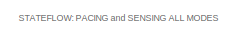
[diagram: root canvas - part 1/7, top left region]
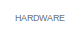
[diagram: root canvas - part 2/7, top right region]
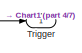
[diagram: root canvas - part 3/7, top center region]
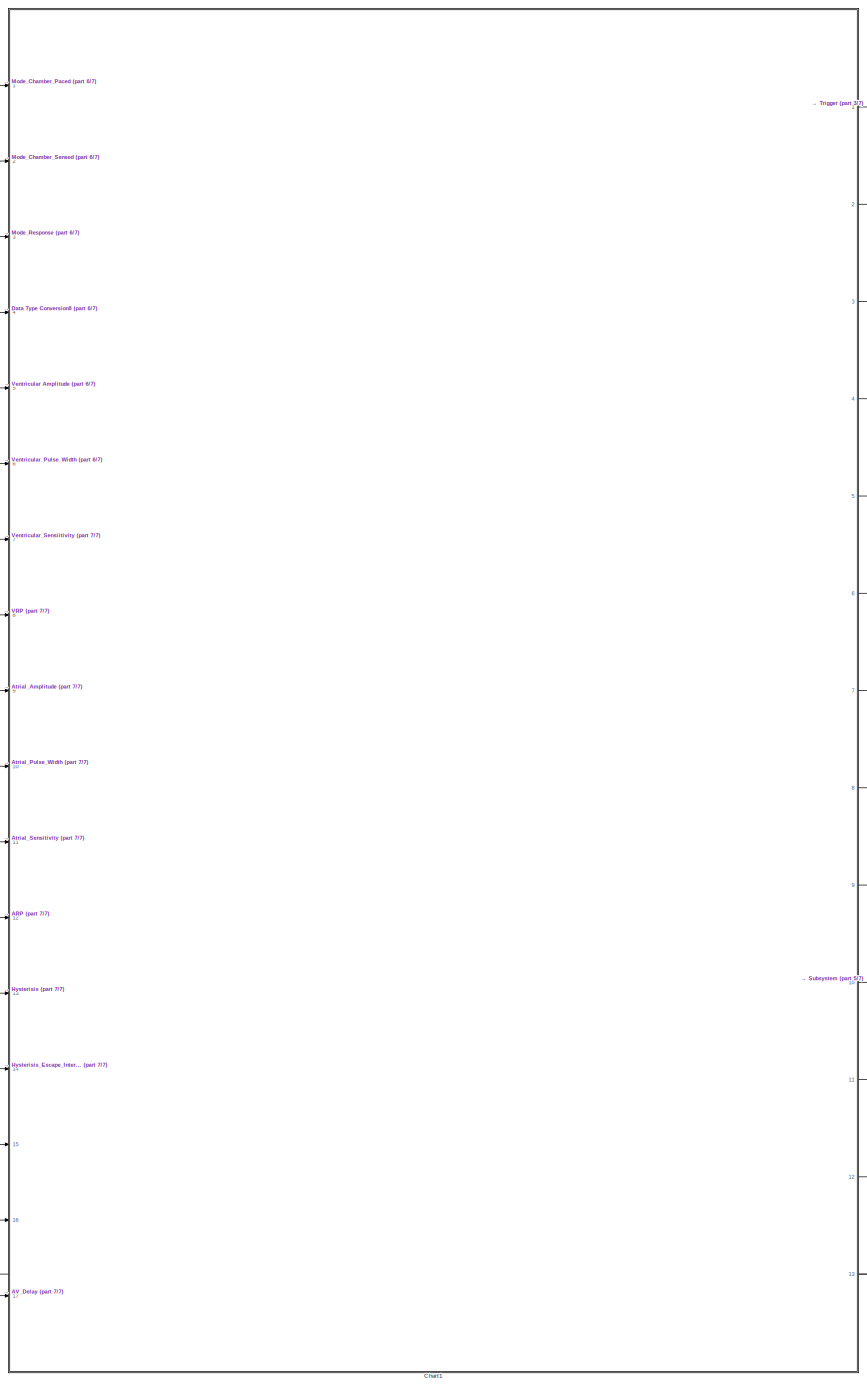
[diagram: root canvas - part 4/7, center side, full height]
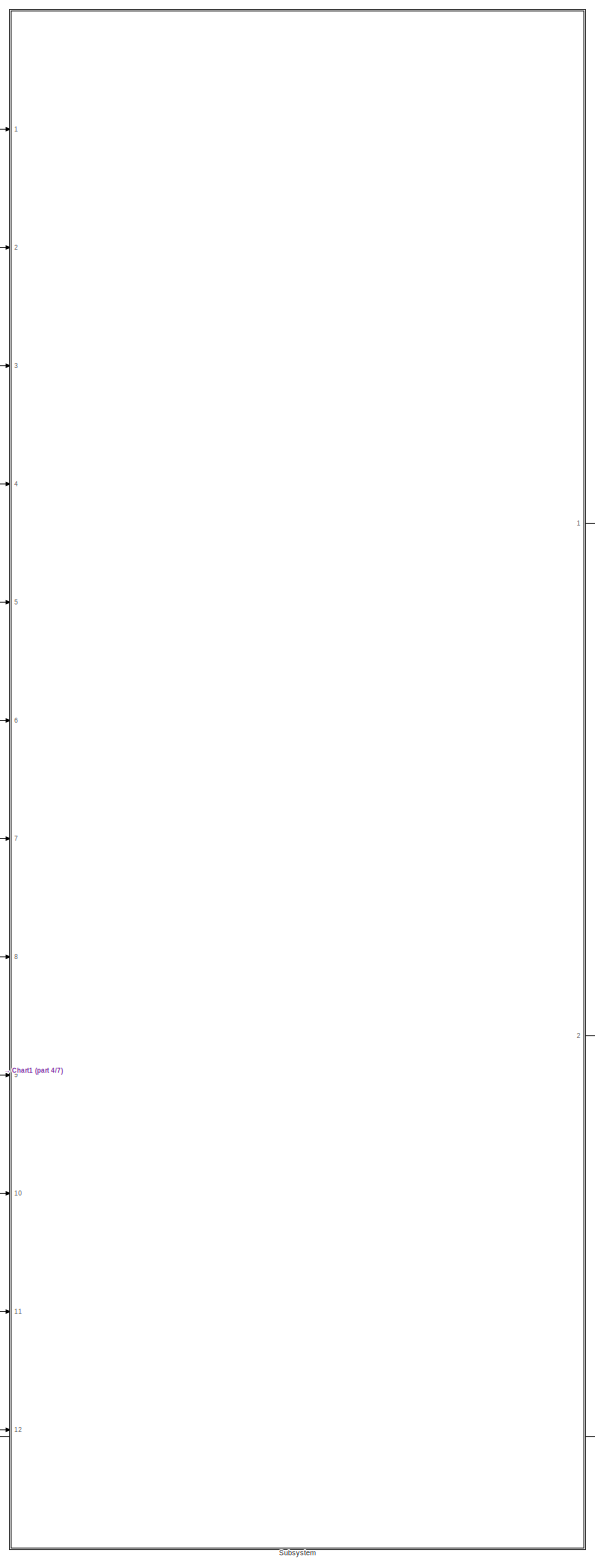
[diagram: root canvas - part 5/7, right side, full height]
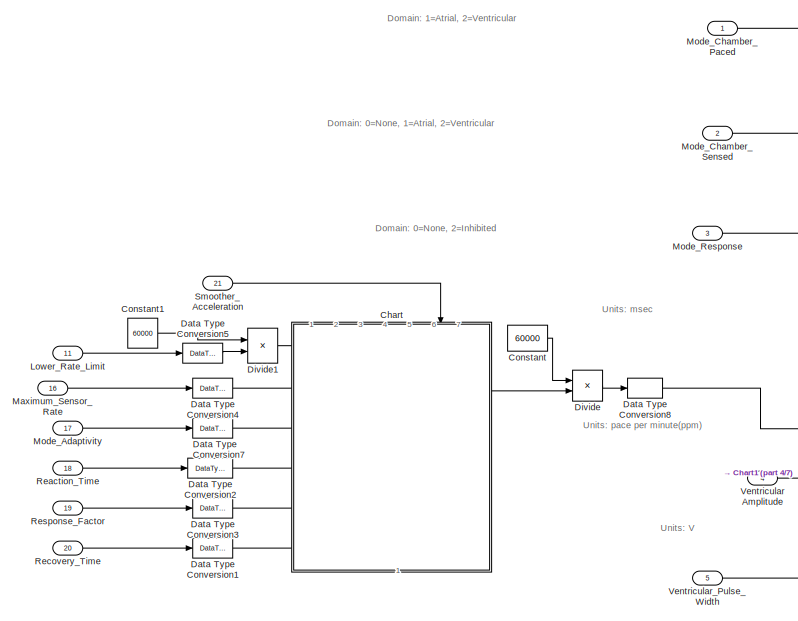
[diagram: root canvas - part 6/7, top left region]
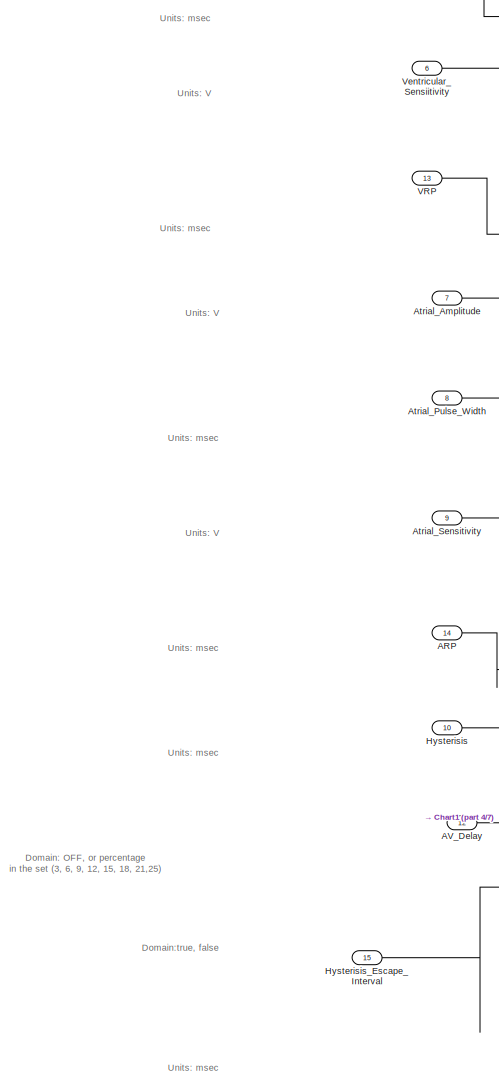
[diagram: root canvas - part 7/7, middle left region]
MODEL slx_50f4cad7bde8
KIND model
CONFIG AbsTol = auto
CONFIG EnableMultiTasking = on
CONFIG FixedStep = 1e-3
CONFIG MaxStep = auto
CONFIG MinStep = auto
CONFIG RelTol = 1e-3
CONFIG SampleTimeConstraint = Unconstrained
CONFIG Solver = FixedStepAuto
CONFIG SolverName = FixedStepAuto
CONFIG StartTime = 0.0
CONFIG StopTime = 10.0
BLOCK [Inport] ARP
  OutDataTypeStr = uint16
  Port = 14
BLOCK [Inport] AV_Delay
  OutDataTypeStr = uint16
  Port = 12
BLOCK [Inport] Atrial_Amplitude
  OutDataTypeStr = uint8
  Port = 7
BLOCK [Inport] Atrial_Pulse_Width
  OutDataTypeStr = uint16
  Port = 8
BLOCK [Inport] Atrial_Sensitivity
  OutDataTypeStr = uint8
  Port = 9
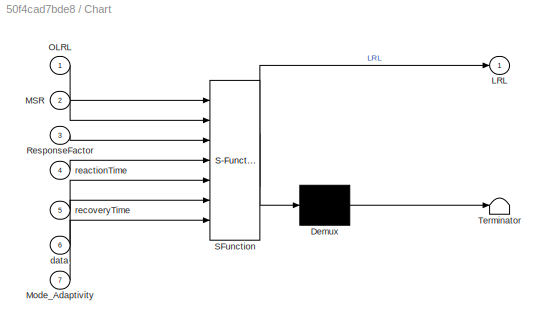
BLOCK [SubSystem] Chart
  ErrorFcn = Stateflow.Translate.translate
  NameLocation = left
  PermitHierarchicalResolution = ExplicitOnly
  PortSchema = {"entries":[{"content":{"sides":[{"content":{"connectorIds":["In6"]},"type":"ConnectorPlacement.EquallySpacedRectSide","uuid":"5e590210-4b26-43ca-b410-899265592776"},{"content":{"connectorIds":[],"side":"RIGHT"},"type":"ConnectorPlacement.EquallySpacedRectSide","uuid":"99d9f5d1-b5a6-4f8b-b4f2-efe260ebc8c4"},{"content":{"connectorIds":["Out1"],"side":"TOP"},"type":"ConnectorPlacement.EquallySpacedR...<+421ch>
  Ports = [7, 1]
  RequestExecContextInheritance = off
  SFBlockType = Chart
  TreatAsAtomicUnit = on
BLOCK [Demux] Chart/ Demux 
  Outputs = 1
  Ports = [1, 1]
BLOCK [S-Function] Chart/ SFunction 
  EnableBusSupport = on
  FunctionName = sf_sfun
  PortCounts = [7 2]
  Ports = [7, 2]
  SFcnIsStateOwnerBlock = off
  SFunctionDeploymentMode = off
  Tag = Stateflow S-Function 1
BLOCK [Terminator] Chart/ Terminator 
BLOCK [Outport] Chart/LRL
BLOCK [Inport] Chart/MSR
  Port = 2
BLOCK [Inport] Chart/Mode_Adaptivity
  Port = 7
BLOCK [Inport] Chart/OLRL
BLOCK [Inport] Chart/ResponseFactor
  Port = 3
BLOCK [Inport] Chart/data
  Port = 6
BLOCK [Inport] Chart/reactionTime
  Port = 4
BLOCK [Inport] Chart/recoveryTime
  Port = 5
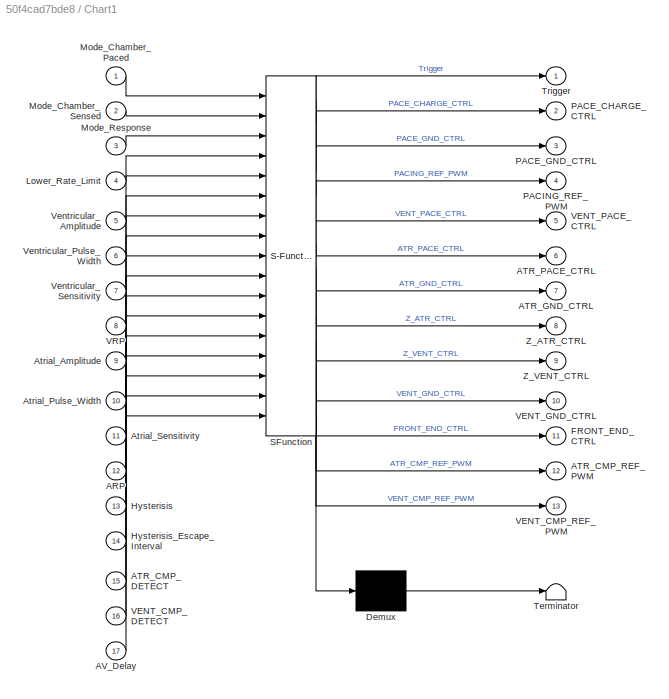
BLOCK [SubSystem] Chart1
  ErrorFcn = Stateflow.Translate.translate
  PermitHierarchicalResolution = ExplicitOnly
  PortSchema = {"entries":[{"content":{"sides":[{"content":{"connectorIds":["In1","In2","In3","In4","In5","In6","In7","In8","In9","In10","In11","In12","In13","In17","In14","In15","In16"]},"type":"ConnectorPlacement.EquallySpacedRectSide","uuid":"ef801456-a3d3-4c00-800f-18f55ff1f97a"},{"content":{"connectorIds":["Out1","Out2","Out3","Out4","Out5","Out6","Out7","Out8","Out9","Out10","Out11","Out12","Out13"],"side"...<+434ch>
  Ports = [17, 13]
  RequestExecContextInheritance = off
  SFBlockType = Chart
  TreatAsAtomicUnit = on
BLOCK [Demux] Chart1/ Demux 
  Outputs = 1
  Ports = [1, 1]
BLOCK [S-Function] Chart1/ SFunction 
  EnableBusSupport = on
  FunctionName = sf_sfun
  PortCounts = [17 14]
  Ports = [17, 14]
  SFcnIsStateOwnerBlock = off
  SFunctionDeploymentMode = off
  Tag = Stateflow S-Function 2
BLOCK [Terminator] Chart1/ Terminator 
BLOCK [Inport] Chart1/ARP
  Port = 12
BLOCK [Inport] Chart1/ATR_CMP_DETECT
  Port = 15
BLOCK [Outport] Chart1/ATR_CMP_REF_PWM
  Port = 12
BLOCK [Outport] Chart1/ATR_GND_CTRL
  Port = 7
BLOCK [Outport] Chart1/ATR_PACE_CTRL
  Port = 6
BLOCK [Inport] Chart1/AV_Delay
  Port = 17
BLOCK [Inport] Chart1/Atrial_Amplitude
  Port = 9
BLOCK [Inport] Chart1/Atrial_Pulse_Width
  Port = 10
BLOCK [Inport] Chart1/Atrial_Sensitivity
  Port = 11
BLOCK [Outport] Chart1/FRONT_END_CTRL
  Port = 11
BLOCK [Inport] Chart1/Hysterisis
  Port = 13
BLOCK [Inport] Chart1/Hysterisis_Escape_Interval
  Port = 14
BLOCK [Inport] Chart1/Lower_Rate_Limit
  Port = 4
BLOCK [Inport] Chart1/Mode_Chamber_Paced
BLOCK [Inport] Chart1/Mode_Chamber_Sensed
  Port = 2
BLOCK [Inport] Chart1/Mode_Response
  Port = 3
BLOCK [Outport] Chart1/PACE_CHARGE_CTRL
  Port = 2
BLOCK [Outport] Chart1/PACE_GND_CTRL
  Port = 3
BLOCK [Outport] Chart1/PACING_REF_PWM
  Port = 4
BLOCK [Outport] Chart1/Trigger
BLOCK [Inport] Chart1/VENT_CMP_DETECT
  Port = 16
BLOCK [Outport] Chart1/VENT_CMP_REF_PWM
  Port = 13
BLOCK [Outport] Chart1/VENT_GND_CTRL
  Port = 10
BLOCK [Outport] Chart1/VENT_PACE_CTRL
  Port = 5
BLOCK [Inport] Chart1/VRP
  Port = 8
BLOCK [Inport] Chart1/Ventricular_Amplitude
  Port = 5
BLOCK [Inport] Chart1/Ventricular_Pulse_Width
  Port = 6
BLOCK [Inport] Chart1/Ventricular_Sensitivity
  Port = 7
BLOCK [Outport] Chart1/Z_ATR_CTRL
  Port = 8
BLOCK [Outport] Chart1/Z_VENT_CTRL
  Port = 9
BLOCK [Constant] Constant
  SampleTime = -1
  Value = 60000
BLOCK [Constant] Constant1
  SampleTime = -1
  Value = 60000
BLOCK [DataTypeConversion] Data Type Conversion1
  OutDataTypeStr = double
  RndMeth = Floor
  SaturateOnIntegerOverflow = off
BLOCK [DataTypeConversion] Data Type Conversion2
  OutDataTypeStr = double
  RndMeth = Floor
  SaturateOnIntegerOverflow = off
BLOCK [DataTypeConversion] Data Type Conversion3
  OutDataTypeStr = double
  RndMeth = Floor
  SaturateOnIntegerOverflow = off
BLOCK [DataTypeConversion] Data Type Conversion4
  OutDataTypeStr = double
  RndMeth = Floor
  SaturateOnIntegerOverflow = off
BLOCK [DataTypeConversion] Data Type Conversion5
  OutDataTypeStr = double
  RndMeth = Floor
  SaturateOnIntegerOverflow = off
BLOCK [DataTypeConversion] Data Type Conversion7
  OutDataTypeStr = double
  RndMeth = Floor
  SaturateOnIntegerOverflow = off
BLOCK [DataTypeConversion] Data Type Conversion8
  OutDataTypeStr = uint16
  RndMeth = Floor
  SaturateOnIntegerOverflow = off
BLOCK [Product] Divide
  Inputs = */
  Ports = [2, 1]
BLOCK [Product] Divide1
  Inputs = */
  Ports = [2, 1]
BLOCK [Inport] Hysterisis
  OutDataTypeStr = uint8
  Port = 10
BLOCK [Inport] Hysterisis_Escape_Interval
  OutDataTypeStr = uint16
  Port = 15
BLOCK [Inport] Lower_Rate_Limit
  OutDataTypeStr = uint16
  Port = 11
BLOCK [Inport] Maximum_Sensor_Rate
  OutDataTypeStr = uint8
  Port = 16
BLOCK [Inport] Mode_Adaptivity
  OutDataTypeStr = uint8
  Port = 17
BLOCK [Inport] Mode_Chamber_Paced
  OutDataTypeStr = uint8
BLOCK [Inport] Mode_Chamber_Sensed
  OutDataTypeStr = uint8
  Port = 2
BLOCK [Inport] Mode_Response
  OutDataTypeStr = uint8
  Port = 3
BLOCK [Inport] Reaction_Time
  OutDataTypeStr = uint8
  Port = 18
BLOCK [Inport] Recovery_Time
  OutDataTypeStr = uint8
  Port = 20
BLOCK [Inport] Response_Factor
  OutDataTypeStr = uint8
  Port = 19
BLOCK [Inport] Smoother_Acceleration
  Port = 21
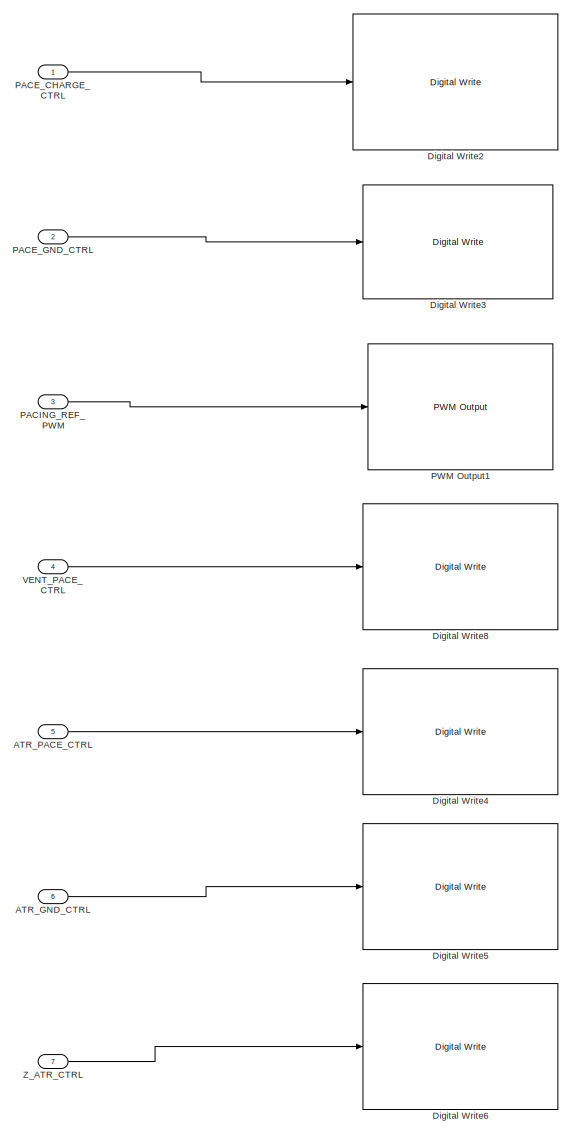
[diagram: Subsystem - part 1/2, full width, top band]
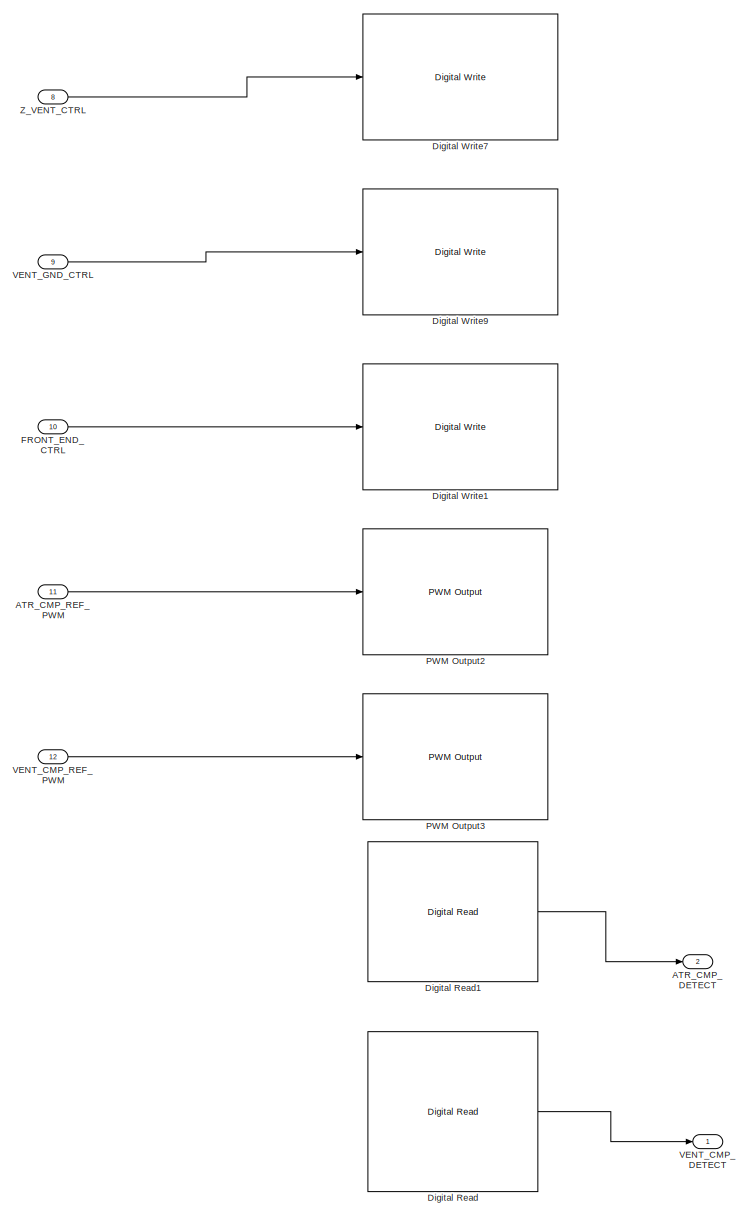
[diagram: Subsystem - part 2/2, full width, bottom band]
BLOCK [SubSystem] Subsystem
  Ports = [12, 2]
  RequestExecContextInheritance = off
BLOCK [Outport] Subsystem/ATR_CMP_DETECT
  Port = 2
BLOCK [Inport] Subsystem/ATR_CMP_REF_PWM
  Port = 11
BLOCK [Inport] Subsystem/ATR_GND_CTRL
  Port = 6
BLOCK [Inport] Subsystem/ATR_PACE_CTRL
  Port = 5
BLOCK [Reference] Subsystem/Digital Read  REF=frdmk64flib/Digital Read
  Ports = [0, 1]
  SourceBlock = frdmk64flib/Digital Read
  SourceProductBaseCode = EC_FRDM_K64F
  SourceType = freedomk64f.DigitalRead
BLOCK [Reference] Subsystem/Digital Read1  REF=frdmk64flib/Digital Read
  Ports = [0, 1]
  SourceBlock = frdmk64flib/Digital Read
  SourceProductBaseCode = EC_FRDM_K64F
  SourceType = freedomk64f.DigitalRead
BLOCK [Reference] Subsystem/Digital Write1  REF=frdmk64flib/Digital Write
  Ports = [1]
  SourceBlock = frdmk64flib/Digital Write
  SourceProductBaseCode = EC_FRDM_K64F
  SourceType = freedomk64f.DigitalWrite
BLOCK [Reference] Subsystem/Digital Write2  REF=frdmk64flib/Digital Write
  Ports = [1]
  SourceBlock = frdmk64flib/Digital Write
  SourceProductBaseCode = EC_FRDM_K64F
  SourceType = freedomk64f.DigitalWrite
BLOCK [Reference] Subsystem/Digital Write3  REF=frdmk64flib/Digital Write
  Ports = [1]
  SourceBlock = frdmk64flib/Digital Write
  SourceProductBaseCode = EC_FRDM_K64F
  SourceType = freedomk64f.DigitalWrite
BLOCK [Reference] Subsystem/Digital Write4  REF=frdmk64flib/Digital Write
  Ports = [1]
  SourceBlock = frdmk64flib/Digital Write
  SourceProductBaseCode = EC_FRDM_K64F
  SourceType = freedomk64f.DigitalWrite
BLOCK [Reference] Subsystem/Digital Write5  REF=frdmk64flib/Digital Write
  Ports = [1]
  SourceBlock = frdmk64flib/Digital Write
  SourceProductBaseCode = EC_FRDM_K64F
  SourceType = freedomk64f.DigitalWrite
BLOCK [Reference] Subsystem/Digital Write6  REF=frdmk64flib/Digital Write
  Ports = [1]
  SourceBlock = frdmk64flib/Digital Write
  SourceProductBaseCode = EC_FRDM_K64F
  SourceType = freedomk64f.DigitalWrite
BLOCK [Reference] Subsystem/Digital Write7  REF=frdmk64flib/Digital Write
  Ports = [1]
  SourceBlock = frdmk64flib/Digital Write
  SourceProductBaseCode = EC_FRDM_K64F
  SourceType = freedomk64f.DigitalWrite
BLOCK [Reference] Subsystem/Digital Write8  REF=frdmk64flib/Digital Write
  Ports = [1]
  SourceBlock = frdmk64flib/Digital Write
  SourceProductBaseCode = EC_FRDM_K64F
  SourceType = freedomk64f.DigitalWrite
BLOCK [Reference] Subsystem/Digital Write9  REF=frdmk64flib/Digital Write
  Ports = [1]
  SourceBlock = frdmk64flib/Digital Write
  SourceProductBaseCode = EC_FRDM_K64F
  SourceType = freedomk64f.DigitalWrite
BLOCK [Inport] Subsystem/FRONT_END_CTRL
  Port = 10
BLOCK [Inport] Subsystem/PACE_CHARGE_CTRL
BLOCK [Inport] Subsystem/PACE_GND_CTRL
  Port = 2
BLOCK [Inport] Subsystem/PACING_REF_PWM
  Port = 3
BLOCK [Reference] Subsystem/PWM Output1  REF=frdmk64flib/PWM Output
  Ports = [1]
  SourceBlock = frdmk64flib/PWM Output
  SourceProductBaseCode = EC_FRDM_K64F
  SourceType = freedomk64f.PWMOutput
BLOCK [Reference] Subsystem/PWM Output2  REF=frdmk64flib/PWM Output
  Ports = [1]
  SourceBlock = frdmk64flib/PWM Output
  SourceProductBaseCode = EC_FRDM_K64F
  SourceType = freedomk64f.PWMOutput
BLOCK [Reference] Subsystem/PWM Output3  REF=frdmk64flib/PWM Output
  Ports = [1]
  SourceBlock = frdmk64flib/PWM Output
  SourceProductBaseCode = EC_FRDM_K64F
  SourceType = freedomk64f.PWMOutput
BLOCK [Outport] Subsystem/VENT_CMP_DETECT
BLOCK [Inport] Subsystem/VENT_CMP_REF_PWM
  Port = 12
BLOCK [Inport] Subsystem/VENT_GND_CTRL
  Port = 9
BLOCK [Inport] Subsystem/VENT_PACE_CTRL
  Port = 4
BLOCK [Inport] Subsystem/Z_ATR_CTRL
  Port = 7
BLOCK [Inport] Subsystem/Z_VENT_CTRL
  NameLocation = right
  Port = 8
BLOCK [Outport] Trigger
BLOCK [Inport] VRP
  OutDataTypeStr = uint16
  Port = 13
BLOCK [Inport] Ventricular Amplitude
  OutDataTypeStr = uint8
  Port = 4
BLOCK [Inport] Ventricular_Pulse_Width
  OutDataTypeStr = uint16
  Port = 5
BLOCK [Inport] Ventricular_Sensiitivity
  OutDataTypeStr = uint8
  Port = 6
ANNOTATION (root): Domain: OFF, or percentage in the set (3, 6, 9, 12, 15, 18, 21,25)
ANNOTATION (root): HARDWARE
ANNOTATION (root): STATEFLOW: PACING and SENSING ALL MODES
ANNOTATION (root): Domain: 0=None, 1=Atrial, 2=Ventricular
ANNOTATION (root): Domain: 0=None, 2=Inhibited
ANNOTATION (root): Domain: 1=Atrial, 2=Ventricular
ANNOTATION (root): Domain:true, false
ANNOTATION (root): Units: V
ANNOTATION (root): Units: msec
ANNOTATION (root): Units: pace per minute(ppm)
LINE ARP:1 -> Chart1:12
LINE AV_Delay:1 -> Chart1:17
LINE Atrial_Amplitude:1 -> Chart1:9
LINE Atrial_Pulse_Width:1 -> Chart1:10
LINE Atrial_Sensitivity:1 -> Chart1:11
LINE Chart1:1 -> Trigger:1
LINE Chart1:10 -> Subsystem:9
LINE Chart1:11 -> Subsystem:10
LINE Chart1:12 -> Subsystem:11
LINE Chart1:13 -> Subsystem:12
LINE Chart1:2 -> Subsystem:1
LINE Chart1:3 -> Subsystem:2
LINE Chart1:4 -> Subsystem:3
LINE Chart1:5 -> Subsystem:4
LINE Chart1:6 -> Subsystem:5
LINE Chart1:7 -> Subsystem:6
LINE Chart1:8 -> Subsystem:7
LINE Chart1:9 -> Subsystem:8
LINE Chart:1 -> Divide:2
LINE Constant1:1 -> Divide1:1
LINE Constant:1 -> Divide:1
LINE Data Type Conversion1:1 -> Chart:5
LINE Data Type Conversion2:1 -> Chart:4
LINE Data Type Conversion3:1 -> Chart:3
LINE Data Type Conversion4:1 -> Chart:2
LINE Data Type Conversion5:1 -> Divide1:2
LINE Data Type Conversion7:1 -> Chart:7
LINE Data Type Conversion8:1 -> Chart1:4
LINE Divide1:1 -> Chart:1
LINE Divide:1 -> Data Type Conversion8:1
LINE Hysterisis:1 -> Chart1:13
LINE Hysterisis_Escape_Interval:1 -> Chart1:14
LINE Lower_Rate_Limit:1 -> Data Type Conversion5:1
LINE Maximum_Sensor_Rate:1 -> Data Type Conversion4:1
LINE Mode_Adaptivity:1 -> Data Type Conversion7:1
LINE Mode_Chamber_Paced:1 -> Chart1:1
LINE Mode_Chamber_Sensed:1 -> Chart1:2
LINE Mode_Response:1 -> Chart1:3
LINE Reaction_Time:1 -> Data Type Conversion2:1
LINE Recovery_Time:1 -> Data Type Conversion1:1
LINE Response_Factor:1 -> Data Type Conversion3:1
LINE Smoother_Acceleration:1 -> Chart:6
LINE Subsystem/ATR_CMP_REF_PWM:1 -> Subsystem/PWM Output2:1
LINE Subsystem/ATR_GND_CTRL:1 -> Subsystem/Digital Write5:1
LINE Subsystem/ATR_PACE_CTRL:1 -> Subsystem/Digital Write4:1
LINE Subsystem/Digital Read1:1 -> Subsystem/ATR_CMP_DETECT:1
LINE Subsystem/Digital Read:1 -> Subsystem/VENT_CMP_DETECT:1
LINE Subsystem/FRONT_END_CTRL:1 -> Subsystem/Digital Write1:1
LINE Subsystem/PACE_CHARGE_CTRL:1 -> Subsystem/Digital Write2:1
LINE Subsystem/PACE_GND_CTRL:1 -> Subsystem/Digital Write3:1
LINE Subsystem/PACING_REF_PWM:1 -> Subsystem/PWM Output1:1
LINE Subsystem/VENT_CMP_REF_PWM:1 -> Subsystem/PWM Output3:1
LINE Subsystem/VENT_GND_CTRL:1 -> Subsystem/Digital Write9:1
LINE Subsystem/VENT_PACE_CTRL:1 -> Subsystem/Digital Write8:1
LINE Subsystem/Z_ATR_CTRL:1 -> Subsystem/Digital Write6:1
LINE Subsystem/Z_VENT_CTRL:1 -> Subsystem/Digital Write7:1
LINE Subsystem:1 -> Chart1:15
LINE Subsystem:2 -> Chart1:16
LINE VRP:1 -> Chart1:8
LINE Ventricular Amplitude:1 -> Chart1:5
LINE Ventricular_Pulse_Width:1 -> Chart1:6
LINE Ventricular_Sensiitivity:1 -> Chart1:7
CHART Chart states=5 transitions=8
  STATE_LABEL 'start\nexit:\nLRL = OLRL;\n'
  STATE_LABEL 'main\nentry:\nRateChange=ResponseFactor/4;\n%make sure LRL never exceeds MSR or goes below MSR\nLRL = max(OLRL, LRL);\nLRL=min(LRL, MSR);\n'
  STATE_LABEL 'Increasing\nentry:\nLRL=LRL+RateChange;'
  STATE_LABEL 'Constant\nentry:\nLRL=OLRL;\n'
  STATE_LABEL 'Decreasing\nentry:\nLRL=LRL-RateChange;\n'
CHART Chart1 states=31 transitions=30
  STATE_LABEL 'DUAL_MODES'
  STATE_LABEL 'A_PACING\nentry:\nPACE_CHARGE_CTRL = LOW;\nPACE_GND_CTRL = HIGH;\nVENT_PACE_CTRL = LOW;\nATR_GND_CTRL =LOW;\nZ_ATR_CTRL = LOW;\nZ_VENT_CTRL = LOW;\nVENT_GND_CTRL = LOW;\nATR_PACE_CTRL =HIGH;\n'
  STATE_LABEL 'V_CHARGING_A_DISCHARGING\nentry:\n%Charging c22\nATR_PACE_CTRL=LOW;\nVENT_PACE_CTRL=LOW;\nPACING_REF_PWM=Ventricular_Amplitude;\nPACE_CHARGE_CTRL=HIGH;\n%Discharging Atrium\nPACE_GND_CTRL=HIGH;\nVENT_PACE_CTRL=LOW;\nZ_ATR_CTRL=LOW;\nZ_VENT_CTRL=LOW;\nATR_PACE_CTRL=LOW;\nATR_GND_CTRL=HIGH;\nVENT_GND_CTRL=LOW;\n'
  STATE_LABEL 'A_CHARGING_V_DISCHARGING\nentry:\n%charge atrium\nATR_PACE_CTRL=LOW;\nVENT_PACE_CTRL=LOW;\nPACING_REF_PWM=Atrial_Amplitude;\nPACE_CHARGE_CTRL=HIGH;\n%discharge ventricle\nPACE_GND_CTRL=HIGH;\nVENT_PACE_CTRL=LOW;\nZ_ATR_CTRL=LOW;\nZ_VENT_CTRL=LOW;\nATR_PACE_CTRL=LOW;\nATR_GND_CTRL=LOW;\nVENT_GND_CTRL=HIGH;\nAtrial_Escape_Interval =Lower_Rate_Limit-AV_Delay;\nTrigger = HIGH;\n'
  STATE_LABEL 'V_PACING\nentry:\nPACE_CHARGE_CTRL = LOW;\nPACE_GND_CTRL = HIGH;\nATR_PACE_CTRL = LOW;\nATR_GND_CTRL =LOW;\nZ_ATR_CTRL = LOW;\nZ_VENT_CTRL = LOW;\nVENT_GND_CTRL = LOW;\nVENT_PACE_CTRL =HIGH;\n'
  STATE_LABEL '[after(Atrial_Escape_Interval-Atrial_Pulse_Width-Ventricular_Pulse_Width, msec)]'
  STATE_LABEL '[after(Atrial_Pulse_Width,msec)]'
  STATE_LABEL '[after(AV_Delay,msec)]'
  STATE_LABEL 'A_PACING\nentry:\nPACE_CHARGE_CTRL = LOW;\nPACE_GND_CTRL = HIGH;\nVENT_PACE_CTRL = LOW;\nATR_GND_CTRL =LOW;\nZ_ATR_CTRL = LOW;\nZ_VENT_CTRL = LOW;\nVENT_GND_CTRL = LOW;\nATR_PACE_CTRL =HIGH;\n'
  STATE_LABEL 'V_CHARGING_A_DISCHARGING\nentry:\n%Charging c22\nATR_PACE_CTRL=LOW;\nVENT_PACE_CTRL=LOW;\nPACING_REF_PWM=Ventricular_Amplitude;\nPACE_CHARGE_CTRL=HIGH;\n%Discharging Atrium\nPACE_GND_CTRL=HIGH;\nVENT_PACE_CTRL=LOW;\nZ_ATR_CTRL=LOW;\nZ_VENT_CTRL=LOW;\nATR_PACE_CTRL=LOW;\nATR_GND_CTRL=HIGH;\nVENT_GND_CTRL=LOW;\n'
  STATE_LABEL 'A_CHARGING_V_DISCHARGING\nentry:\n%charge atrium\nATR_PACE_CTRL=LOW;\nVENT_PACE_CTRL=LOW;\nPACING_REF_PWM=Atrial_Amplitude;\nPACE_CHARGE_CTRL=HIGH;\n%discharge ventricle\nPACE_GND_CTRL=HIGH;\nVENT_PACE_CTRL=LOW;\nZ_ATR_CTRL=LOW;\nZ_VENT_CTRL=LOW;\nATR_PACE_CTRL=LOW;\nATR_GND_CTRL=LOW;\nVENT_GND_CTRL=HIGH;\nAtrial_Escape_Interval =Lower_Rate_Limit-AV_Delay;\nTrigger = HIGH;\n'
  STATE_LABEL 'V_PACING\nentry:\nPACE_CHARGE_CTRL = LOW;\nPACE_GND_CTRL = HIGH;\nATR_PACE_CTRL = LOW;\nATR_GND_CTRL =LOW;\nZ_ATR_CTRL = LOW;\nZ_VENT_CTRL = LOW;\nVENT_GND_CTRL = LOW;\nVENT_PACE_CTRL =HIGH;\n'
  STATE_LABEL '<!DOCTYPE HTML PUBLIC "-//W3C//DTD HTML 4.0//EN" "http://www.w3.org/TR/REC-html40/strict.dtd">\n<html><head><meta name="qrichtext" content="1" /><style type="text/css">\np, li { white-space: pre-wrap; }\n</style></head><body align="left" style=" font-family:\'Helvetica\'; font-size:12px; font-weight:400; font-style:normal;">\n<p align="left" style=" margin-top:0px; margin-bottom:0px; margin-left:0px; ma...<+211ch>'
  STATE_LABEL 'DECIDE_STATEFLOW\nentry:\n%Upon new cycle, trigger the parameter update\nTrigger=LOW;\nduring:\n%During is reached when inputs are data stores are empty (zero),\n%such as before the any serial data is sent\n%(e.g. when model is first deployed to the board).\n%Continuously update the data stores by trigerring the update subsystem\nTrigger=~Trigger;\n'
  STATE_LABEL 'NON_DUAL_MODES'
  STATE_LABEL 'Charging_C23\nentry:\nATR_PACE_CTRL   = LOW;\nVENT_PACE_CTRL = LOW;\nTrigger = HIGH;\n'
  STATE_LABEL 'Atrial_Charge\nentry:\nPACING_REF_PWM = Atrial_Amplitude;\n'
  STATE_LABEL 'Ventricular_Charge\nentry:\nPACING_REF_PWM = Ventricular_Amplitude;\n'
  STATE_LABEL 'Discharging_C21_and_Pace_Interval_Calculations\nentry:\nPACE_CHARGE_CTRL = HIGH;\n%Discharging C21\nPACE_GND_CTRL=HIGH;\nVENT_PACE_CTRL=LOW;\nZ_ATR_CTRL= LOW;\nZ_VENT_CTRL = LOW;\nATR_PACE_CTRL = LOW;\nPace_Interval = Lower_Rate_Limit;\nif Hysterisis == HIGH\n    Pace_Interval = Pace_Interval + Hysterisis_Escape_Interval;\nend\n'
  STATE_LABEL '<!DOCTYPE HTML PUBLIC "-//W3C//DTD HTML 4.0//EN" "http://www.w3.org/TR/REC-html40/strict.dtd">\n<html><head><meta name="qrichtext" content="1" /><style type="text/css">\np, li { white-space: pre-wrap; }\n</style></head><body align="left" style=" font-family:\'Helvetica\'; font-size:12px; font-weight:400; font-style:normal;">\n<p align="left" style=" margin-top:0px; margin-bottom:0px; margin-left:0px; ma...<+294ch>'
  STATE_LABEL 'Atrial_Discharge\nentry:\nATR_GND_CTRL= HIGH;\nVENT_GND_CTRL= LOW;\nPace_Interval =Pace_Interval-Atrial_Pulse_Width;\n'
  STATE_LABEL 'Ventricular_Discharge\nentry:\nATR_GND_CTRL = LOW;\nVENT_GND_CTRL = HIGH;\nPace_Interval =Pace_Interval -Ventricular_Pulse_Width;\n'
  STATE_LABEL 'Atrial_Sensing\nentry:\nFRONT_END_CTRL = HIGH;\nATR_CMP_REF_PWM= Atrial_Sensitivity;\n'
  STATE_LABEL 'Ventricular_Sensing\nentry:\nFRONT_END_CTRL = HIGH;\nVENT_CMP_REF_PWM = Ventricular_Sensitivity;\n'
  STATE_LABEL 'No_Natural_Activity_Sensed\nentry:\nFRONT_END_CTRL = HIGH;\n'
  STATE_LABEL 'Pacing_Begin\nentry:\nPACE_CHARGE_CTRL = LOW;\nPACE_GND_CTRL = HIGH;\n'
  STATE_LABEL 'Ventricular_Pacing\nentry:\nATR_PACE_CTRL = LOW;\n'
  STATE_LABEL 'Atrial_Pacing\nentry:\nVENT_PACE_CTRL = LOW;\n'
  STATE_LABEL 'Pacing\nentry:\nATR_GND_CTRL =LOW;\nZ_ATR_CTRL = LOW;\nZ_VENT_CTRL = LOW;\nVENT_GND_CTRL = LOW;\n'
  STATE_LABEL 'Vent_Pacing_2\nentry:\nVENT_PACE_CTRL =HIGH;\n'
  STATE_LABEL 'Atrial_Pacing_2\nentry:\nATR_PACE_CTRL =HIGH;\n'
  STATE_LABEL '[Mode_Chamber_Paced==1]'
  STATE_LABEL '[Mode_Chamber_Paced==2]'
  STATE_LABEL '[Mode_Chamber_Paced==2]'
  STATE_LABEL '[Mode_Chamber_Paced==1]'
  STATE_LABEL '[Mode_Chamber_Sensed==1]'
  STATE_LABEL '[Mode_Chamber_Sensed==0 && after(Pace_Interval, msec)]'
  STATE_LABEL '[Mode_Chamber_Sensed==0 && after(Pace_Interval, msec)]'
  STATE_LABEL '[Mode_Chamber_Sensed==2]'
  STATE_LABEL '[after(Pace_Interval,msec)]'
CHART  states=0 transitions=0
CHART  states=0 transitions=0
